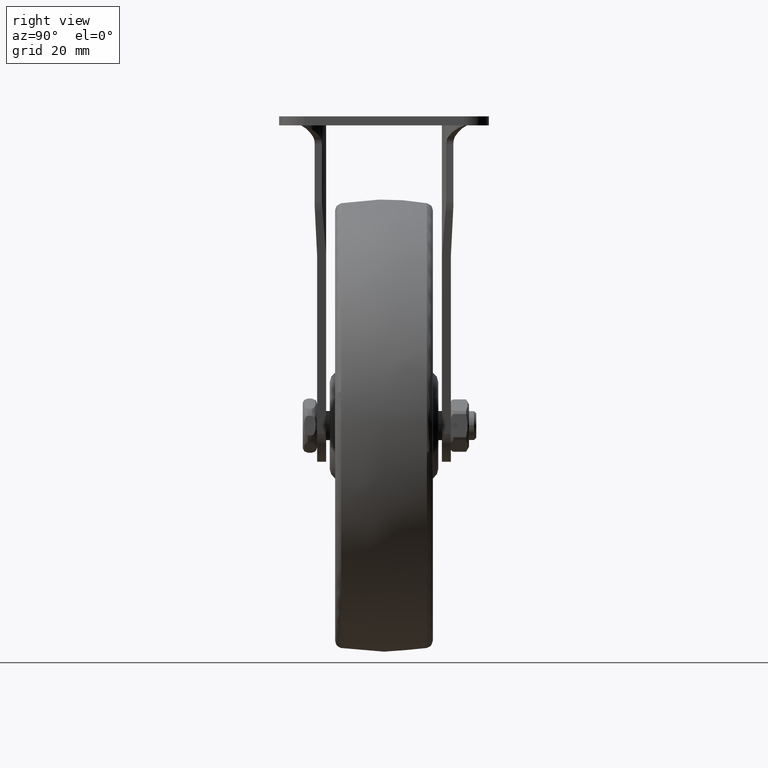
[diagram: clean part render]
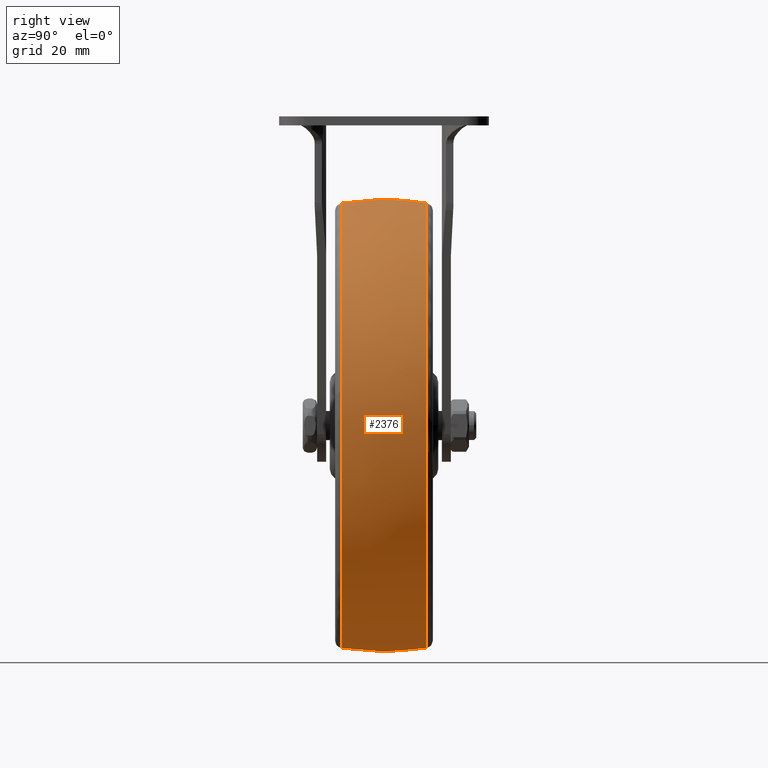
[diagram: same view with one face highlighted and labeled with its STEP entity id]
A machine part, right view. The second image highlights one B-rep face of the part: STEP entity #2376.
In plain terms, the highlighted face is a freeform B-spline surface patch.
Its self-contained STEP definition (entity closure, byte-faithful):
#1862=CARTESIAN_POINT('',(16.195362784402288,-11.838233012704160,-59.320658462612322));
#1863=VERTEX_POINT('',#1862);
#1877=CARTESIAN_POINT('',(60.793887234105810,-11.838216167013201,9.237628490825443));
#1878=VERTEX_POINT('',#1877);
#1879=CARTESIAN_POINT('',(16.195362784402292,-11.838233012704160,-59.320658462612315));
#1880=CARTESIAN_POINT('',(61.491710585976094,-11.838230023331253,-46.954127391296737));
#1881=CARTESIAN_POINT('',(61.491710447444177,-11.838218445689099,0.000002682840006));
#1882=CARTESIAN_POINT('',(61.491710433739229,-11.838217300313438,4.645172853608881));
#1883=CARTESIAN_POINT('',(60.793887234105810,-11.838216167013202,9.237628490825443));
#1891=(BOUNDED_CURVE()B_SPLINE_CURVE(2,(#1879,#1880,#1881,#1882,#1883),.UNSPECIFIED.,.F.,.U.)B_SPLINE_CURVE_WITH_KNOTS((3,2,3),(0.044901926686561,0.250000000000000,0.275897576514644),.UNSPECIFIED.)CURVE()GEOMETRIC_REPRESENTATION_ITEM()RATIONAL_B_SPLINE_CURVE((0.913685083998564,0.759712660539158,1.0,0.969659101820633,0.945604249498252))REPRESENTATION_ITEM(''));
#1892=EDGE_CURVE('',#1863,#1878,#1891,.T.);
#1991=CARTESIAN_POINT('',(0.0,-11.838203316487130,61.491716475505598));
#1992=VERTEX_POINT('',#1991);
#1993=CARTESIAN_POINT('',(60.793887234105803,-11.838216167013195,9.237628490825443));
#1994=CARTESIAN_POINT('',(52.853884621998823,-11.838203316487132,61.491716475505598));
#1995=CARTESIAN_POINT('',(0.0,-11.838203316487130,61.491716475505598));
#2003=(BOUNDED_CURVE()B_SPLINE_CURVE(2,(#1993,#1994,#1995),.UNSPECIFIED.,.F.,.U.)B_SPLINE_CURVE_WITH_KNOTS((3,3),(0.275897576514644,0.500000000000000),.UNSPECIFIED.)CURVE()GEOMETRIC_REPRESENTATION_ITEM()RATIONAL_B_SPLINE_CURVE((0.945604249498252,0.737447679365914,1.0))REPRESENTATION_ITEM(''));
#2004=EDGE_CURVE('',#1878,#1992,#2003,.T.);
#2006=CARTESIAN_POINT('',(-61.080439244491558,-11.838224907239621,7.100047970384306));
#2007=VERTEX_POINT('',#2006);
#2021=CARTESIAN_POINT('',(0.0,-11.838233890880680,-61.491711229283197));
#2022=VERTEX_POINT('',#2021);
#2023=CARTESIAN_POINT('',(-61.080439244491558,-11.838224907239621,7.100047970384306));
#2024=CARTESIAN_POINT('',(-61.491712720960770,-11.838225138937499,3.561935672858862));
#2025=CARTESIAN_POINT('',(-61.491712676613972,-11.838225399128261,0.000000168239104));
#2026=CARTESIAN_POINT('',(-61.491711911029931,-11.838229890948792,-61.491711150036302));
#2027=CARTESIAN_POINT('',(0.0,-11.838233890880680,-61.491711229283197));
#2035=(BOUNDED_CURVE()B_SPLINE_CURVE(2,(#2023,#2024,#2025,#2026,#2027),.UNSPECIFIED.,.F.,.U.)B_SPLINE_CURVE_WITH_KNOTS((3,2,3),(0.730000125327627,0.750000000000000,1.0),.UNSPECIFIED.)CURVE()GEOMETRIC_REPRESENTATION_ITEM()RATIONAL_B_SPLINE_CURVE((0.956886364865959,0.976568689325372,1.0,0.707106781186548,1.0))REPRESENTATION_ITEM(''));
#2036=EDGE_CURVE('',#2007,#2022,#2035,.T.);
#2038=CARTESIAN_POINT('',(0.0,-11.838233890880680,-61.491711229283197));
#2039=CARTESIAN_POINT('',(8.243200247090311,-11.838233721660332,-61.491710277160820));
#2040=CARTESIAN_POINT('',(16.195362784402292,-11.838233012704158,-59.320658462612322));
#2048=(BOUNDED_CURVE()B_SPLINE_CURVE(2,(#2038,#2039,#2040),.UNSPECIFIED.,.F.,.U.)B_SPLINE_CURVE_WITH_KNOTS((3,3),(0.0,0.044901926686561),.UNSPECIFIED.)CURVE()GEOMETRIC_REPRESENTATION_ITEM()RATIONAL_B_SPLINE_CURVE((1.0,0.947394120647390,0.913685083998564))REPRESENTATION_ITEM(''));
#2049=EDGE_CURVE('',#2022,#1863,#2048,.T.);
#2078=CARTESIAN_POINT('',(61.058975341427512,11.838220743509620,-7.282283602775302));
#2079=VERTEX_POINT('',#2078);
#2080=CARTESIAN_POINT('',(0.0,11.838201778009170,61.491714616502620));
#2081=VERTEX_POINT('',#2080);
#2082=CARTESIAN_POINT('',(61.058975341427512,11.838220743509618,-7.282283602775303));
#2083=CARTESIAN_POINT('',(61.491708131107139,11.838219749422608,-3.653996982493354));
#2084=CARTESIAN_POINT('',(61.491708088942787,11.838218747518781,0.000003773785796));
#2085=CARTESIAN_POINT('',(61.491707379376059,11.838201886881752,61.491714541368616));
#2086=CARTESIAN_POINT('',(0.0,11.838201778009170,61.491714616502620));
#2094=(BOUNDED_CURVE()B_SPLINE_CURVE(2,(#2082,#2083,#2084,#2085,#2086),.UNSPECIFIED.,.F.,.U.)B_SPLINE_CURVE_WITH_KNOTS((3,2,3),(0.229495606966877,0.250000000000000,0.500000000000000),.UNSPECIFIED.)CURVE()GEOMETRIC_REPRESENTATION_ITEM()RATIONAL_B_SPLINE_CURVE((0.955895734921953,0.975977609298850,1.0,0.707106781186547,1.0))REPRESENTATION_ITEM(''));
#2095=EDGE_CURVE('',#2079,#2081,#2094,.T.);
#2204=CARTESIAN_POINT('',(0.0,11.838235254025159,-61.491706749408102));
#2205=VERTEX_POINT('',#2204);
#2206=CARTESIAN_POINT('',(0.0,11.838235254025159,-61.491706749408102));
#2207=CARTESIAN_POINT('',(54.593609711283982,11.838235376654183,-61.491706834035561));
#2208=CARTESIAN_POINT('',(61.058975341427512,11.838220743509618,-7.282283602775303));
#2216=(BOUNDED_CURVE()B_SPLINE_CURVE(2,(#2206,#2207,#2208),.UNSPECIFIED.,.F.,.U.)B_SPLINE_CURVE_WITH_KNOTS((3,3),(0.0,0.229495606966877),.UNSPECIFIED.)CURVE()GEOMETRIC_REPRESENTATION_ITEM()RATIONAL_B_SPLINE_CURVE((1.0,0.731129171887697,0.955895734921953))REPRESENTATION_ITEM(''));
#2217=EDGE_CURVE('',#2205,#2079,#2216,.T.);
#2219=CARTESIAN_POINT('',(-61.080437336624023,11.838223733218710,7.100047741470908));
#2220=VERTEX_POINT('',#2219);
#2221=CARTESIAN_POINT('',(-61.080437336624023,11.838223733218717,7.100047741470908));
#2222=CARTESIAN_POINT('',(-61.491710716770591,11.838224030352851,3.561935697577446));
#2223=CARTESIAN_POINT('',(-61.491710598822948,11.838224364026839,0.000000447459628));
#2224=CARTESIAN_POINT('',(-61.491708562625952,11.838230124430071,-61.491706538637935));
#2225=CARTESIAN_POINT('',(0.0,11.838235254025159,-61.491706749408102));
#2233=(BOUNDED_CURVE()B_SPLINE_CURVE(2,(#2221,#2222,#2223,#2224,#2225),.UNSPECIFIED.,.F.,.U.)B_SPLINE_CURVE_WITH_KNOTS((3,2,3),(0.730000125347139,0.750000000000000,1.0),.UNSPECIFIED.)CURVE()GEOMETRIC_REPRESENTATION_ITEM()RATIONAL_B_SPLINE_CURVE((0.956886364904365,0.976568689348232,1.0,0.707106781186547,1.0))REPRESENTATION_ITEM(''));
#2234=EDGE_CURVE('',#2220,#2205,#2233,.T.);
#2284=CARTESIAN_POINT('',(-60.864299239014265,-13.043008485443169,7.074967834257482));
#2285=CARTESIAN_POINT('',(-62.081977602067724,-6.579112714544612,7.216512801648682));
#2286=CARTESIAN_POINT('',(-62.081977602067745,-1.377682E-015,7.216512801648683));
#2287=CARTESIAN_POINT('',(-62.081977602067731,6.579115706670995,7.216512801648683));
#2288=CARTESIAN_POINT('',(-60.864298141132053,13.043014313414353,7.074967706637821));
#2289=CARTESIAN_POINT('',(-61.274122529107245,-13.043008485443156,3.549353591524248));
#2290=CARTESIAN_POINT('',(-62.500000000000000,-6.579112714544612,3.620363545228847));
#2291=CARTESIAN_POINT('',(-62.499999999999993,-1.377682E-015,3.620363545228846));
#2292=CARTESIAN_POINT('',(-62.500000000000000,6.579115706670996,3.620363545228847));
#2293=CARTESIAN_POINT('',(-61.274121423832582,13.043014313414357,3.549353527500310));
#2294=CARTESIAN_POINT('',(-61.274122529107267,-13.043008485443165,8.673617E-016));
#2295=CARTESIAN_POINT('',(-62.500000000000014,-6.579112714544612,8.673617E-016));
#2296=CARTESIAN_POINT('',(-62.500000000000000,-1.377682E-015,8.673617E-016));
#2297=CARTESIAN_POINT('',(-62.500000000000014,6.579115706670995,8.673617E-016));
#2298=CARTESIAN_POINT('',(-61.274121423832597,13.043014313414352,8.673617E-016));
#2299=CARTESIAN_POINT('',(-61.274122529107245,-13.043008485443160,-61.274122529107245));
#2300=CARTESIAN_POINT('',(-62.499999999999979,-6.579112714544610,-62.499999999999979));
#2301=CARTESIAN_POINT('',(-62.500000000000000,-1.377682E-015,-62.500000000000000));
#2302=CARTESIAN_POINT('',(-62.499999999999986,6.579115706670994,-62.499999999999986));
#2303=CARTESIAN_POINT('',(-61.274121423832582,13.043014313414355,-61.274121423832582));
#2304=CARTESIAN_POINT('',(0.0,-13.043008485443165,-61.274122529107267));
#2305=CARTESIAN_POINT('',(0.0,-6.579112714544612,-62.500000000000014));
#2306=CARTESIAN_POINT('',(0.0,-1.377682E-015,-62.500000000000000));
#2307=CARTESIAN_POINT('',(0.0,6.579115706670995,-62.500000000000014));
#2308=CARTESIAN_POINT('',(0.0,13.043014313414352,-61.274121423832597));
#2309=CARTESIAN_POINT('',(61.274122529107245,-13.043008485443160,-61.274122529107245));
#2310=CARTESIAN_POINT('',(62.499999999999979,-6.579112714544610,-62.499999999999979));
#2311=CARTESIAN_POINT('',(62.500000000000000,-1.377682E-015,-62.500000000000000));
#2312=CARTESIAN_POINT('',(62.499999999999986,6.579115706670994,-62.499999999999986));
#2313=CARTESIAN_POINT('',(61.274121423832582,13.043014313414355,-61.274121423832582));
#2314=CARTESIAN_POINT('',(61.274122529107267,-13.043008485443165,8.673617E-016));
#2315=CARTESIAN_POINT('',(62.500000000000014,-6.579112714544612,8.673617E-016));
#2316=CARTESIAN_POINT('',(62.500000000000000,-1.377682E-015,8.673617E-016));
#2317=CARTESIAN_POINT('',(62.500000000000014,6.579115706670995,8.673617E-016));
#2318=CARTESIAN_POINT('',(61.274121423832597,13.043014313414352,8.673617E-016));
#2319=CARTESIAN_POINT('',(61.274122529107245,-13.043008485443160,61.274122529107245));
#2320=CARTESIAN_POINT('',(62.499999999999979,-6.579112714544610,62.499999999999979));
#2321=CARTESIAN_POINT('',(62.500000000000000,-1.377682E-015,62.500000000000000));
#2322=CARTESIAN_POINT('',(62.499999999999986,6.579115706670994,62.499999999999986));
#2323=CARTESIAN_POINT('',(61.274121423832582,13.043014313414355,61.274121423832582));
#2324=CARTESIAN_POINT('',(0.0,-13.043008485443165,61.274122529107267));
#2325=CARTESIAN_POINT('',(0.0,-6.579112714544612,62.500000000000014));
#2326=CARTESIAN_POINT('',(0.0,-1.377682E-015,62.500000000000000));
#2327=CARTESIAN_POINT('',(0.0,6.579115706670995,62.500000000000014));
#2328=CARTESIAN_POINT('',(0.0,13.043014313414352,61.274121423832597));
#2336=(BOUNDED_SURFACE()B_SPLINE_SURFACE(2,2,((#2284,#2289,#2294,#2299,#2304,#2309,#2314,#2319,#2324),(#2285,#2290,#2295,#2300,#2305,#2310,#2315,#2320,#2325),(#2286,#2291,#2296,#2301,#2306,#2311,#2316,#2321,#2326),(#2287,#2292,#2297,#2302,#2307,#2312,#2317,#2322,#2327),(#2288,#2293,#2298,#2303,#2308,#2313,#2318,#2323,#2328)),.UNSPECIFIED.,.F.,.F.,.U.)B_SPLINE_SURFACE_WITH_KNOTS((3,2,3),(3,2,2,2,3),(0.0,13.512654823574810,27.025315579002712),(0.0,8.284269519228245,111.837660112501990,215.391050705775800,318.944441299049570),.UNSPECIFIED.)GEOMETRIC_REPRESENTATION_ITEM()RATIONAL_B_SPLINE_SURFACE(((0.899402337278957,0.917902360368996,0.939926196505799,0.664628187364130,0.939926196505799,0.664628187364130,0.939926196505799,0.664628187364130,0.939926196505799),(0.923628578127742,0.942626916595127,0.965243985300436,0.682530567505466,0.965243985300436,0.682530567505466,0.965243985300436,0.682530567505466,0.965243985300436),(0.956886126402807,0.976568547383107,1.0,0.707106781186548,1.0,0.707106781186548,1.0,0.707106781186548,1.0),(0.923628563528177,0.942626901695260,0.965243970043066,0.682530556716876,0.965243970043066,0.682530556716876,0.965243970043066,0.682530556716876,0.965243970043066),(0.899402316009046,0.917902338661578,0.939926174277540,0.664628171646377,0.939926174277540,0.664628171646377,0.939926174277540,0.664628171646377,0.939926174277540)))REPRESENTATION_ITEM('')SURFACE());
#2337=ORIENTED_EDGE('',*,*,#2036,.F.);
#2338=CARTESIAN_POINT('',(-61.080439244491558,-11.838224907239617,7.100047970384306));
#2339=CARTESIAN_POINT('',(-62.081982176315975,-5.962051543894616,7.216469017400747));
#2340=CARTESIAN_POINT('',(-62.081981660688271,-0.000000176931374,7.216468955665449));
#2341=CARTESIAN_POINT('',(-62.081981145060588,5.962050770941333,7.216468893930155));
#2342=CARTESIAN_POINT('',(-61.080437336624023,11.838223733218715,7.100047741470908));
#2350=(BOUNDED_CURVE()B_SPLINE_CURVE(2,(#2338,#2339,#2340,#2341,#2342),.UNSPECIFIED.,.F.,.U.)B_SPLINE_CURVE_WITH_KNOTS((3,2,3),(0.438277028905958,0.500000000000000,0.561722966892448),.UNSPECIFIED.)CURVE()GEOMETRIC_REPRESENTATION_ITEM()RATIONAL_B_SPLINE_CURVE((0.903877638910462,0.926649261257661,0.956886118190660,0.926649263315938,0.903877642010673))REPRESENTATION_ITEM(''));
#2351=EDGE_CURVE('',#2007,#2220,#2350,.T.);
#2352=ORIENTED_EDGE('',*,*,#2351,.T.);
#2353=ORIENTED_EDGE('',*,*,#2234,.T.);
#2354=ORIENTED_EDGE('',*,*,#2217,.T.);
#2355=ORIENTED_EDGE('',*,*,#2095,.T.);
#2356=CARTESIAN_POINT('',(0.0,-11.838203316487132,61.491716475505598));
#2357=CARTESIAN_POINT('',(0.0,-5.962040511291036,62.499999488165841));
#2358=CARTESIAN_POINT('',(0.0,-0.000000176931144,62.499998968858321));
#2359=CARTESIAN_POINT('',(0.0,5.962039552105037,62.499998449550858));
#2360=CARTESIAN_POINT('',(0.0,11.838201778009172,61.491714616502620));
#2368=(BOUNDED_CURVE()B_SPLINE_CURVE(2,(#2356,#2357,#2358,#2359,#2360),.UNSPECIFIED.,.F.,.U.)B_SPLINE_CURVE_WITH_KNOTS((3,2,3),(0.438277139513402,0.500000000000000,0.561722854417921),.UNSPECIFIED.)CURVE()GEOMETRIC_REPRESENTATION_ITEM()RATIONAL_B_SPLINE_CURVE((0.944603232653224,0.968400834567666,1.0,0.968400837674540,0.944603237332850))REPRESENTATION_ITEM(''));
#2369=EDGE_CURVE('',#1992,#2081,#2368,.T.);
#2370=ORIENTED_EDGE('',*,*,#2369,.F.);
#2371=ORIENTED_EDGE('',*,*,#2004,.F.);
#2372=ORIENTED_EDGE('',*,*,#1892,.F.);
#2373=ORIENTED_EDGE('',*,*,#2049,.F.);
#2374=EDGE_LOOP('',(#2337,#2352,#2353,#2354,#2355,#2370,#2371,#2372,#2373));
#2375=FACE_OUTER_BOUND('',#2374,.T.);
#2376=ADVANCED_FACE('',(#2375),#2336,.T.);